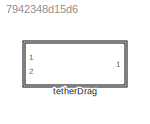
MODEL slx_7942348d15d6
KIND library
CONFIG AbsTol = auto
CONFIG EnableMultiTasking = off
CONFIG FixedStep = auto
CONFIG MaxStep = auto
CONFIG MinStep = auto
CONFIG RelTol = 1e-3
CONFIG SampleTimeConstraint = Unconstrained
CONFIG Solver = VariableStepAuto
CONFIG SolverName = VariableStepAuto
CONFIG StartTime = 0.0
CONFIG StopTime = 10.0
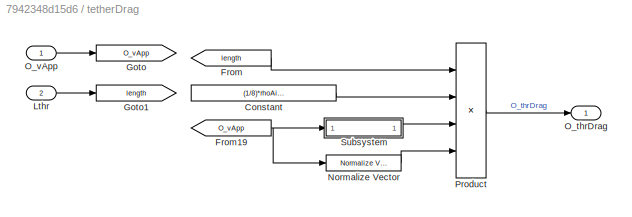
BLOCK [SubSystem] tetherDrag
  Ports = [2, 1]
  RequestExecContextInheritance = off
BLOCK [Constant] tetherDrag/Constant
  Value = (1/8)*rhoAir*dThr*CdThr
BLOCK [From] tetherDrag/From
  GotoTag = length
BLOCK [From] tetherDrag/From19
  GotoTag = O_vApp
BLOCK [Goto] tetherDrag/Goto
  GotoTag = O_vApp
BLOCK [Goto] tetherDrag/Goto1
  GotoTag = length
BLOCK [Inport] tetherDrag/Lthr
  Port = 2
BLOCK [Reference] tetherDrag/Normalize Vector  REF=vrlib/Utilities/Normalize Vector
  Ports = [1, 1]
  SourceBlock = vrlib/Utilities/Normalize Vector
  SourceProductBaseCode = SL
  SourceType = Normalize Vector
BLOCK [Outport] tetherDrag/O_thrDrag
BLOCK [Inport] tetherDrag/O_vApp
BLOCK [Product] tetherDrag/Product
  Inputs = 4
  Ports = [4, 1]
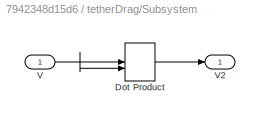
BLOCK [SubSystem] tetherDrag/Subsystem
  Ports = [1, 1]
  RequestExecContextInheritance = off
BLOCK [DotProduct] tetherDrag/Subsystem/Dot Product
  OutDataTypeStr = Inherit: Inherit via internal rule
BLOCK [Inport] tetherDrag/Subsystem/V
BLOCK [Outport] tetherDrag/Subsystem/V2
LINE tetherDrag/Constant:1 -> tetherDrag/Product:2
NET tetherDrag/From19:1 -> tetherDrag/Normalize Vector:1, tetherDrag/Subsystem:1
LINE tetherDrag/From:1 -> tetherDrag/Product:1
LINE tetherDrag/Lthr:1 -> tetherDrag/Goto1:1
LINE tetherDrag/Normalize Vector:1 -> tetherDrag/Product:4
LINE tetherDrag/O_vApp:1 -> tetherDrag/Goto:1
LINE tetherDrag/Product:1 -> tetherDrag/O_thrDrag:1
LINE tetherDrag/Subsystem/Dot Product:1 -> tetherDrag/Subsystem/V2:1
NET tetherDrag/Subsystem/V:1 -> tetherDrag/Subsystem/Dot Product:1, tetherDrag/Subsystem/Dot Product:2
LINE tetherDrag/Subsystem:1 -> tetherDrag/Product:3
note: NET lines group one-source signal fan-out (src -> all destinations, sorted); 1:1 wires keep LINE
